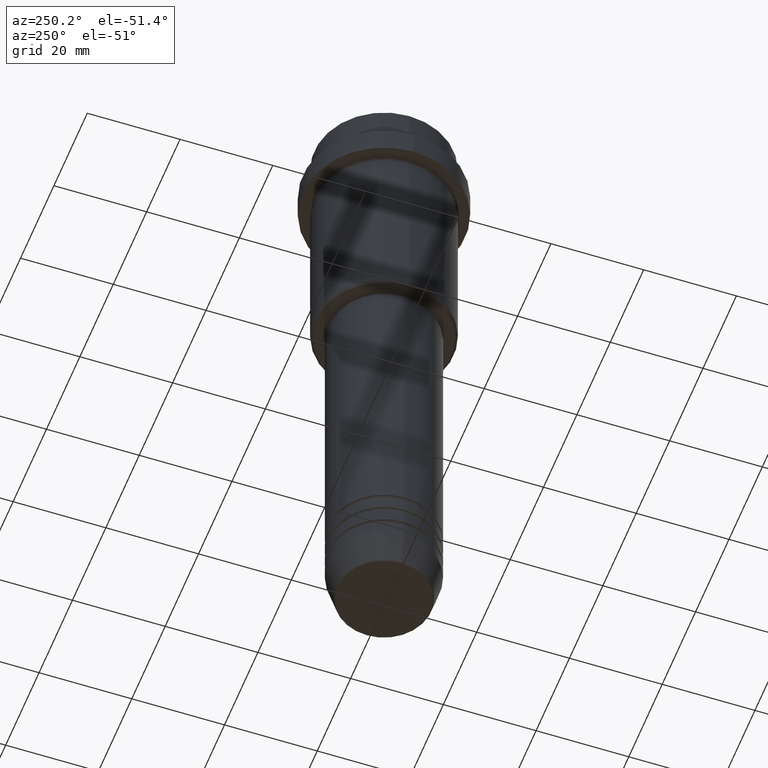
[diagram: clean part render]
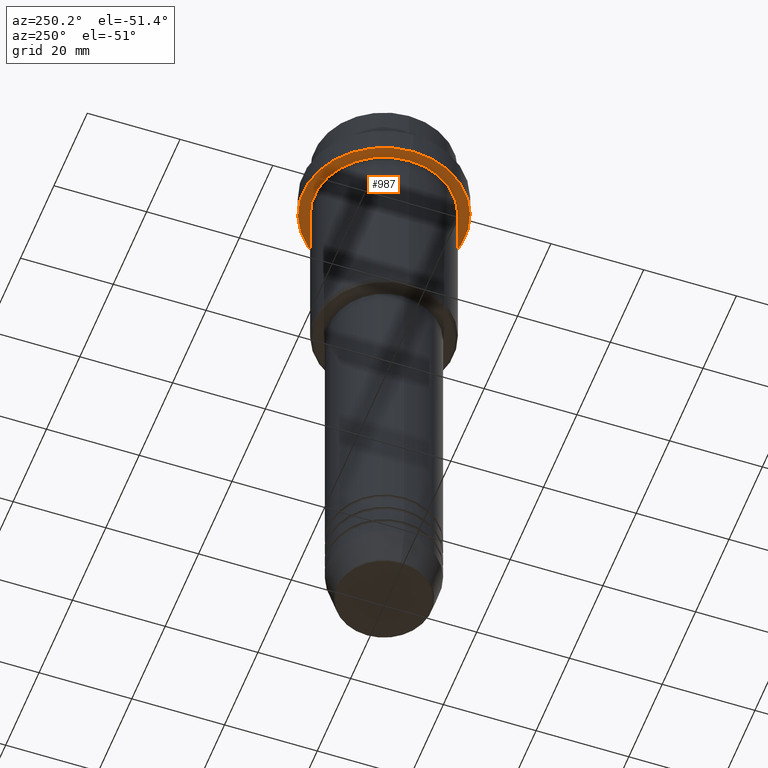
[diagram: same view with one face highlighted and labeled with its STEP entity id]
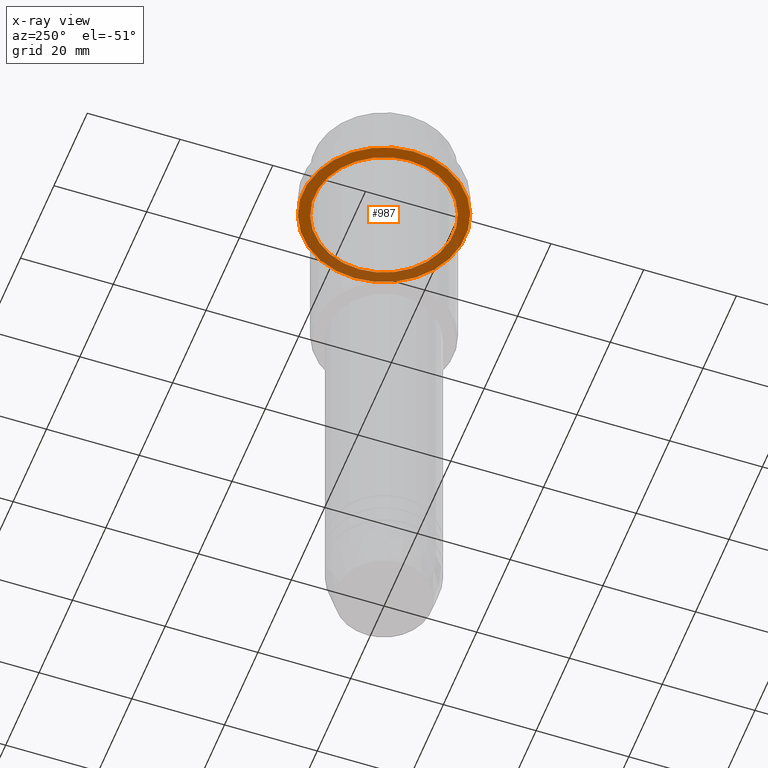
[diagram: x-ray of the same camera — body ghosted, the highlighted face saturated]
A machine part, auxiliary view. The second image highlights one B-rep face of the part: STEP entity #987.
The next image is the same camera in x-ray: the body ghosted, the highlighted face saturated — about 37% of this face is hidden behind the body in this view.
In plain terms, the highlighted planar face has unit normal (0, 0, -1).
Its self-contained STEP definition (entity closure, byte-faithful):
#7 = CARTESIAN_POINT ( 'NONE',  ( -14.99999999999999467, 0.000000000000000000, -15.00000000000000000 ) ) ;
#16 = AXIS2_PLACEMENT_3D ( 'NONE', #975, #1396, #431 ) ;
#34 = ORIENTED_EDGE ( 'NONE', *, *, #333, .T. ) ;
#52 = DIRECTION ( 'NONE',  ( -1.000000000000000000, 0.000000000000000000, -0.000000000000000000 ) ) ;
#80 = FACE_OUTER_BOUND ( 'NONE', #470, .T. ) ;
#115 = CIRCLE ( 'NONE', #666, 17.50000000000000000 ) ;
#121 = EDGE_LOOP ( 'NONE', ( #516, #34 ) ) ;
#156 = EDGE_CURVE ( 'NONE', #635, #406, #1282, .T. ) ;
#177 = DIRECTION ( 'NONE',  ( 1.000000000000000000, 0.000000000000000000, 0.000000000000000000 ) ) ;
#196 = DIRECTION ( 'NONE',  ( -0.000000000000000000, -0.000000000000000000, 1.000000000000000000 ) ) ;
#307 = CARTESIAN_POINT ( 'NONE',  ( 0.000000000000000000, 0.000000000000000000, -15.00000000000000000 ) ) ;
#333 = EDGE_CURVE ( 'NONE', #1169, #1205, #554, .T. ) ;
#385 = DIRECTION ( 'NONE',  ( 1.000000000000000000, 0.000000000000000000, 0.000000000000000000 ) ) ;
#405 = PLANE ( 'NONE',  #878 ) ;
#406 = VERTEX_POINT ( 'NONE', #653 ) ;
#412 = EDGE_CURVE ( 'NONE', #1205, #1169, #1114, .T. ) ;
#431 = DIRECTION ( 'NONE',  ( -1.000000000000000000, 0.000000000000000000, 0.000000000000000000 ) ) ;
#440 = AXIS2_PLACEMENT_3D ( 'NONE', #1104, #835, #385 ) ;
#446 = ORIENTED_EDGE ( 'NONE', *, *, #801, .F. ) ;
#452 = ORIENTED_EDGE ( 'NONE', *, *, #156, .F. ) ;
#470 = EDGE_LOOP ( 'NONE', ( #452, #446 ) ) ;
#516 = ORIENTED_EDGE ( 'NONE', *, *, #412, .T. ) ;
#554 = CIRCLE ( 'NONE', #16, 14.99999999999999467 ) ;
#604 = CARTESIAN_POINT ( 'NONE',  ( 0.000000000000000000, 0.000000000000000000, -15.00000000000000000 ) ) ;
#631 = FACE_BOUND ( 'NONE', #121, .T. ) ;
#635 = VERTEX_POINT ( 'NONE', #1207 ) ;
#653 = CARTESIAN_POINT ( 'NONE',  ( -17.50000000000000000, 2.143131898507868248E-15, -15.00000000000000000 ) ) ;
#666 = AXIS2_PLACEMENT_3D ( 'NONE', #307, #196, #177 ) ;
#793 = DIRECTION ( 'NONE',  ( -1.000000000000000000, 0.000000000000000000, 0.000000000000000000 ) ) ;
#795 = AXIS2_PLACEMENT_3D ( 'NONE', #604, #1146, #793 ) ;
#801 = EDGE_CURVE ( 'NONE', #406, #635, #115, .T. ) ;
#835 = DIRECTION ( 'NONE',  ( -0.000000000000000000, -0.000000000000000000, 1.000000000000000000 ) ) ;
#873 = CARTESIAN_POINT ( 'NONE',  ( 14.99999999999999467, 1.836970198721029194E-15, -15.00000000000000000 ) ) ;
#878 = AXIS2_PLACEMENT_3D ( 'NONE', #1060, #1034, #52 ) ;
#975 = CARTESIAN_POINT ( 'NONE',  ( 0.000000000000000000, 0.000000000000000000, -15.00000000000000000 ) ) ;
#987 = ADVANCED_FACE ( 'NONE', ( #631, #80 ), #405, .T. ) ;
#1034 = DIRECTION ( 'NONE',  ( 0.000000000000000000, 0.000000000000000000, -1.000000000000000000 ) ) ;
#1060 = CARTESIAN_POINT ( 'NONE',  ( 0.000000000000000000, 17.50000000000000000, -15.00000000000000000 ) ) ;
#1104 = CARTESIAN_POINT ( 'NONE',  ( 0.000000000000000000, 0.000000000000000000, -15.00000000000000000 ) ) ;
#1114 = CIRCLE ( 'NONE', #795, 14.99999999999999467 ) ;
#1146 = DIRECTION ( 'NONE',  ( -0.000000000000000000, -0.000000000000000000, 1.000000000000000000 ) ) ;
#1169 = VERTEX_POINT ( 'NONE', #873 ) ;
#1205 = VERTEX_POINT ( 'NONE', #7 ) ;
#1207 = CARTESIAN_POINT ( 'NONE',  ( 17.50000000000000000, 0.000000000000000000, -15.00000000000000000 ) ) ;
#1282 = CIRCLE ( 'NONE', #440, 17.50000000000000000 ) ;
#1396 = DIRECTION ( 'NONE',  ( -0.000000000000000000, -0.000000000000000000, 1.000000000000000000 ) ) ;